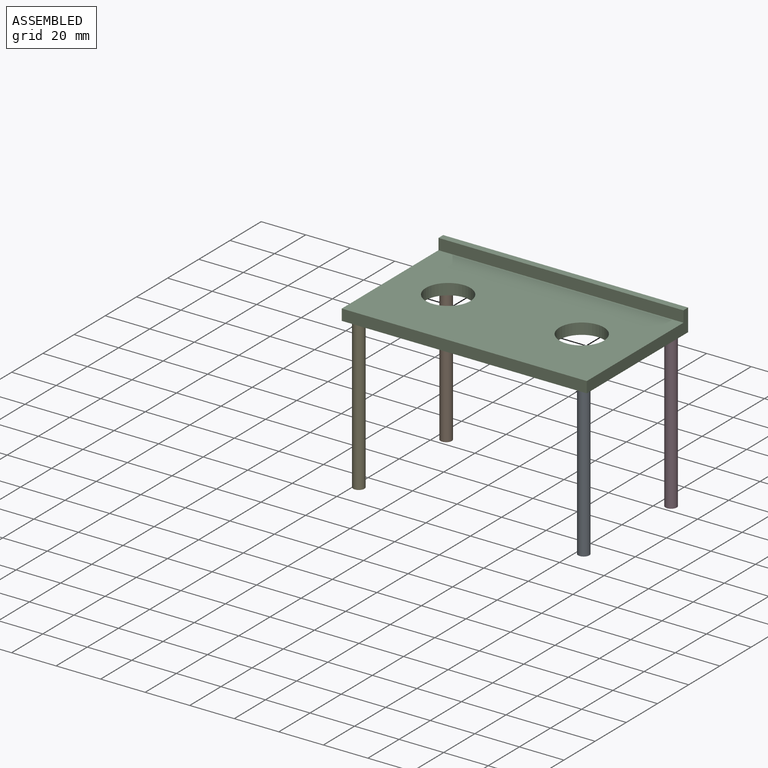
[diagram: assembled view]
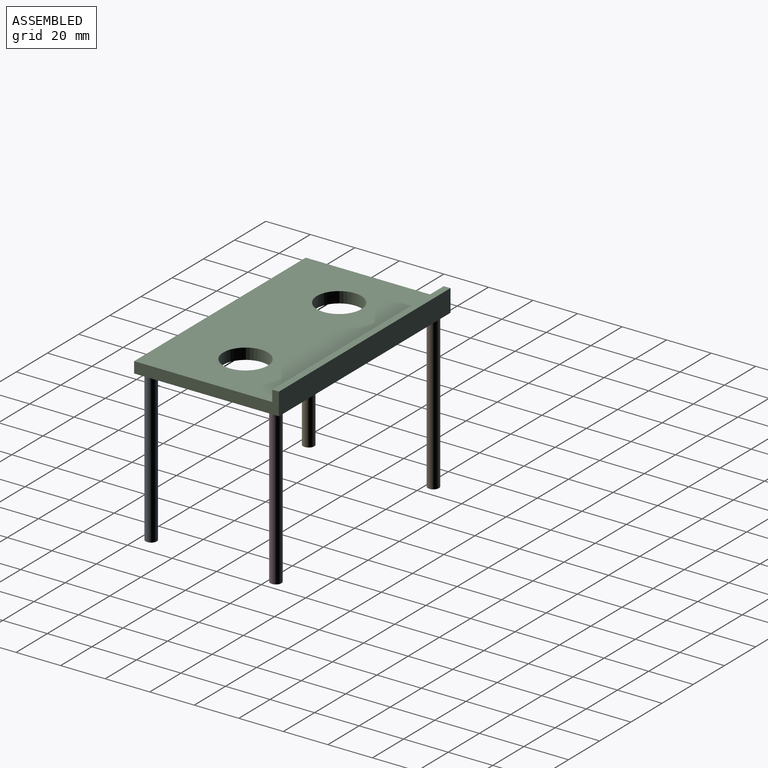
[diagram: assembled view, second angle]
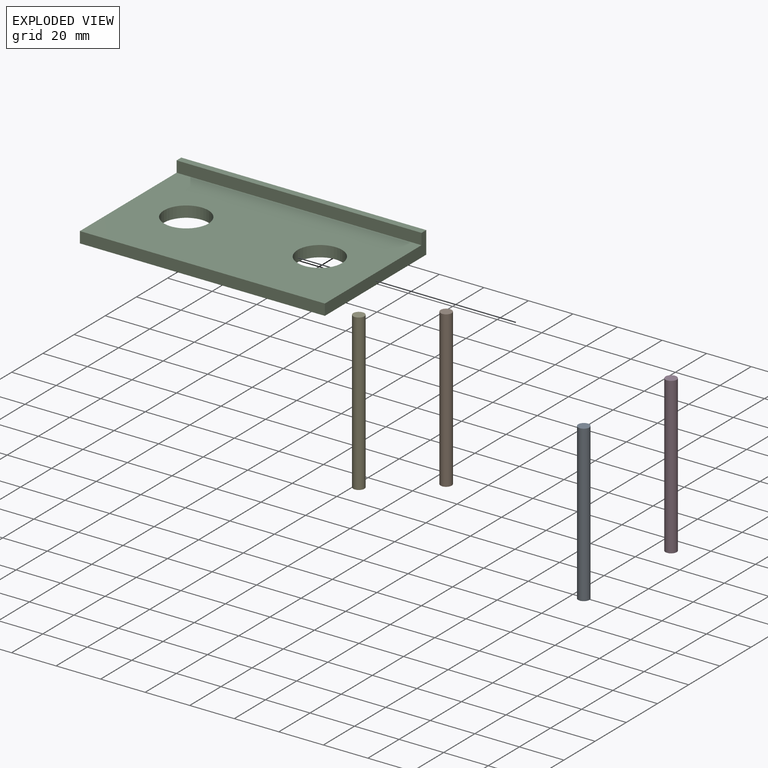
[diagram: exploded view]
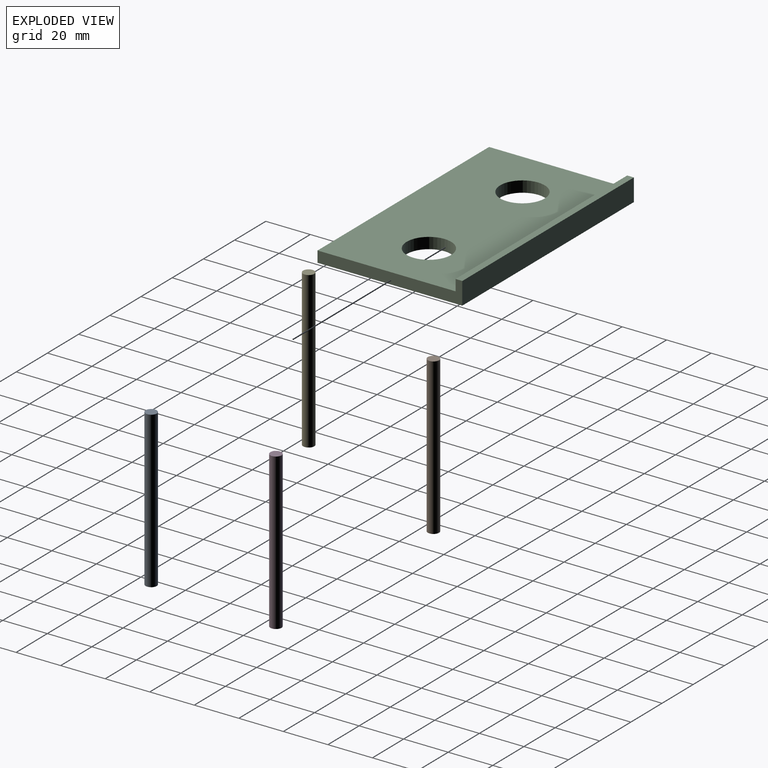
[diagram: exploded view, second angle]
ASSEMBLY  parts=5 mates=4
PART A: 3 faces, bbox 5x5x70 mm
  f0: cylinder r=2.5mm len=70mm, axis (0,0,-1), area 1099.6mm2, adj f1,f2
  f1: plane 5x5mm, normal (0,0,1), area 19.6mm2, adj f0
  f2: plane 5x5mm, normal (0,0,-1), area 19.6mm2, adj f0
PART B: same geometry as A
PART C: 18 faces, bbox 110x65x10 mm
  f0: plane 110x10mm, normal (0,1,0), area 1100mm2, adj f1,f5,f7,f9
  f1: plane 65x10mm, normal (-1,0,0), area 340mm2, adj f0,f2,f6,f7,f8,f9
  f2: plane 110x5mm, normal (0,-1,0), area 550mm2, adj f1,f5,f6,f7
  f3: cylinder r=10mm len=20mm, axis (0,0,-1), area 314.2mm2, adj f6,f7
  f4: cylinder r=10mm len=20mm, axis (0,0,-1), area 314.2mm2, adj f6,f7
  f5: plane 65x10mm, normal (1,0,0), area 340mm2, adj f0,f2,f6,f7,f8,f9
  f6: plane 110x62mm, normal (0,0,1), area 6191.7mm2, adj f1,f2,f3,f4,f5,f8
  f7: plane 110x65mm, normal (0,0,-1), area 6443.1mm2, adj f0,f1,f2,f3,f4,f5,f10,f12
  f8: plane 110x5mm, normal (0,-1,0), area 550mm2, adj f1,f5,f6,f9
  f9: plane 110x3mm, normal (0,0,1), area 330mm2, adj f0,f1,f5,f8
  f10: cylinder r=2.5mm len=5mm, axis (0,0,-1), area 31.4mm2, adj f7,f11
  f11: plane 5x5mm, normal (0,0,-1), area 19.6mm2, adj f10
  f12: cylinder r=2.5mm len=5mm, axis (0,0,-1), area 31.4mm2, adj f7,f13
  f13: plane 5x5mm, normal (0,0,-1), area 19.6mm2, adj f12
  f14: cylinder r=2.5mm len=5mm, axis (0,0,-1), area 31.4mm2, adj f7,f15
  f15: plane 5x5mm, normal (0,0,-1), area 19.6mm2, adj f14
  f16: cylinder r=2.5mm len=5mm, axis (0,0,-1), area 31.4mm2, adj f7,f17
  f17: plane 5x5mm, normal (0,0,-1), area 19.6mm2, adj f16
PART D: same geometry as A
PART E: same geometry as A
PLACE A t=(54.21,-37.89,-68)mm fixed
PLACE B t=(-46.79,18.11,-70)mm fixed
PLACE C at identity
PLACE D t=(54.21,18.11,-70)mm fixed
PLACE E t=(-46.79,-37.89,-68)mm fixed
MATE fastened E.f0 <-> C.f10  axis (0,0,-1) through (-50.5,-28,2)mm
MATE fastened B.f0 <-> C.f16  axis (0,0,-1) through (-50.5,28,0)mm
MATE fastened D.f0 <-> C.f14  axis (0,0,1) through (50.5,28,0)mm
MATE fastened A.f0 <-> C.f12  axis (0,0,-1) through (50.5,-28,2)mm
